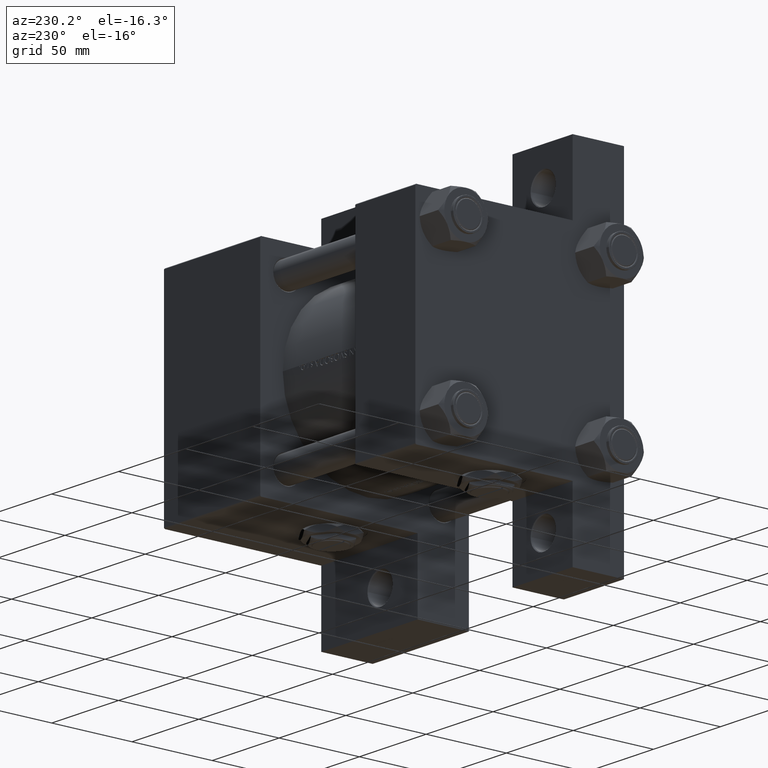
[diagram: clean part render]
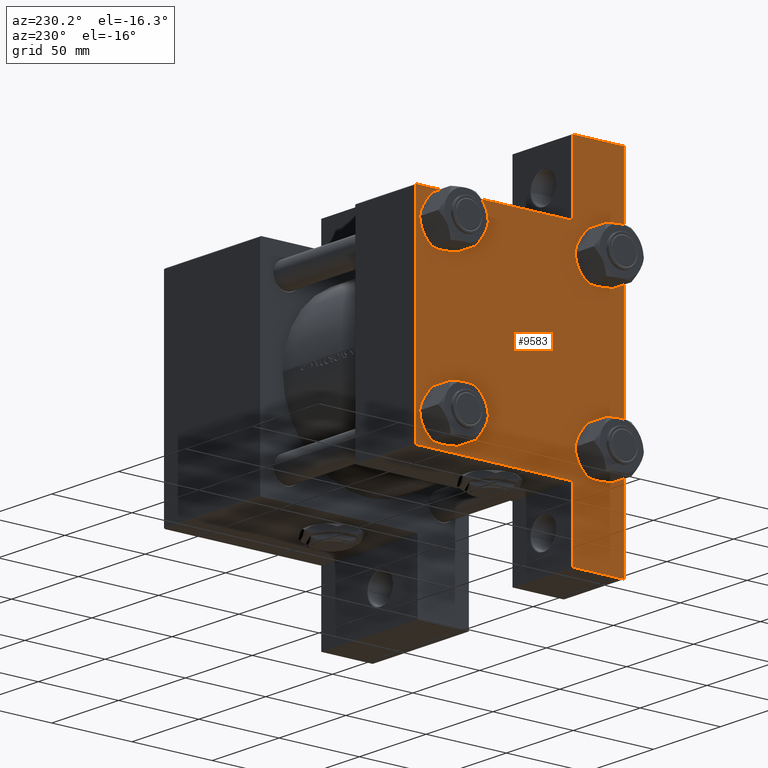
[diagram: same view with one face highlighted and labeled with its STEP entity id]
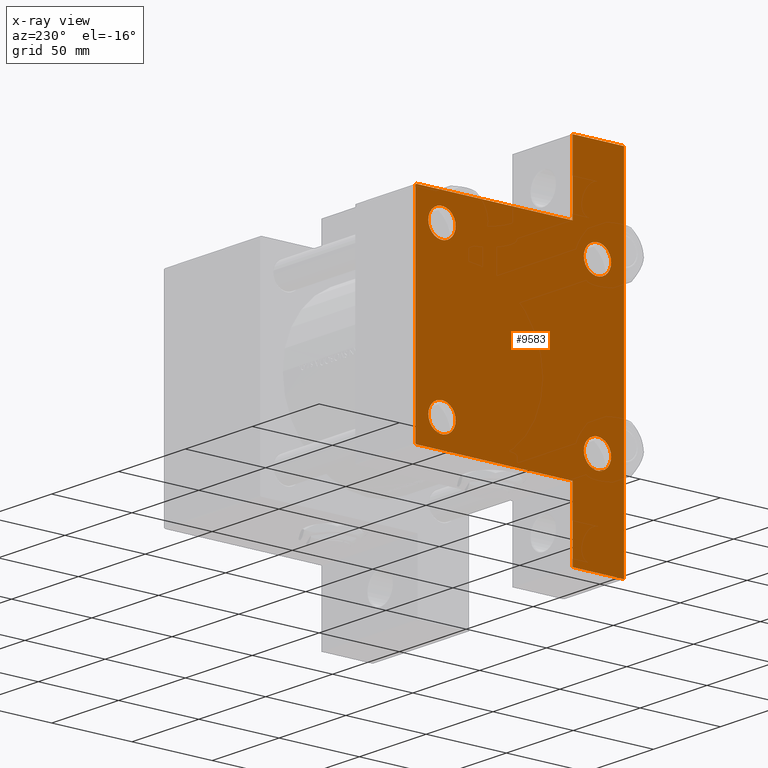
[diagram: x-ray of the same camera — body ghosted, the highlighted face saturated]
A machine part, auxiliary view. The second image highlights one B-rep face of the part: STEP entity #9583.
The next image is the same camera in x-ray: the body ghosted, the highlighted face saturated — about 0% of this face is hidden behind the body in this view.
In plain terms, the highlighted planar face has unit normal (-1, 0, -0).
Its self-contained STEP definition (entity closure, byte-faithful):
#60 = VECTOR ( 'NONE', #31898, 1000.000000000000000 ) ;
#353 = VERTEX_POINT ( 'NONE', #44807 ) ;
#848 = CARTESIAN_POINT ( 'NONE',  ( 0.000000000000000000, -64.49999999999997158, 65.00000000000000000 ) ) ;
#1542 = CARTESIAN_POINT ( 'NONE',  ( -4.696407624884284320E-16, -107.9999999999999858, -33.00000000000000000 ) ) ;
#1690 = AXIS2_PLACEMENT_3D ( 'NONE', #17116, #47537, #5212 ) ;
#1747 = CIRCLE ( 'NONE', #34919, 8.500000000000007105 ) ;
#1955 = CARTESIAN_POINT ( 'NONE',  ( 0.000000000000000000, -65.00000000000000000, 65.00000000000000000 ) ) ;
#2214 = LINE ( 'NONE', #1955, #22351 ) ;
#3772 = CARTESIAN_POINT ( 'NONE',  ( 0.000000000000000000, 48.45000000000000995, 48.45000000000001705 ) ) ;
#3939 = VERTEX_POINT ( 'NONE', #22533 ) ;
#4085 = CARTESIAN_POINT ( 'NONE',  ( 0.000000000000000000, 64.49999999999997158, 65.00000000000001421 ) ) ;
#4445 = VERTEX_POINT ( 'NONE', #6400 ) ;
#4905 = DIRECTION ( 'NONE',  ( 0.000000000000000000, 0.000000000000000000, -1.000000000000000000 ) ) ;
#5212 = DIRECTION ( 'NONE',  ( 0.000000000000000000, 0.000000000000000000, 1.000000000000000000 ) ) ;
#5520 = LINE ( 'NONE', #17172, #60 ) ;
#5689 = VERTEX_POINT ( 'NONE', #19383 ) ;
#6045 = DIRECTION ( 'NONE',  ( 0.000000000000000000, 0.000000000000000000, 1.000000000000000000 ) ) ;
#6400 = CARTESIAN_POINT ( 'NONE',  ( 1.020153353658907479E-15, -65.00000000000000000, -33.00000000000000000 ) ) ;
#6566 = ORIENTED_EDGE ( 'NONE', *, *, #25389, .T. ) ;
#6633 = LINE ( 'NONE', #18290, #46156 ) ;
#6948 = EDGE_CURVE ( 'NONE', #47872, #15053, #30883, .T. ) ;
#7393 = AXIS2_PLACEMENT_3D ( 'NONE', #33173, #44314, #48850 ) ;
#7465 = EDGE_LOOP ( 'NONE', ( #10620, #8917 ) ) ;
#7515 = EDGE_CURVE ( 'NONE', #353, #26882, #1747, .T. ) ;
#8040 = DIRECTION ( 'NONE',  ( 1.000000000000000000, -0.000000000000000000, 0.000000000000000000 ) ) ;
#8573 = CARTESIAN_POINT ( 'NONE',  ( 0.000000000000000000, 65.00000000000000000, 65.00000000000001421 ) ) ;
#8917 = ORIENTED_EDGE ( 'NONE', *, *, #13856, .T. ) ;
#9028 = LINE ( 'NONE', #21442, #46669 ) ;
#9166 = ORIENTED_EDGE ( 'NONE', *, *, #43961, .T. ) ;
#9171 = VERTEX_POINT ( 'NONE', #39033 ) ;
#9583 = ADVANCED_FACE ( 'NONE', ( #24261, #47579, #16158, #39217, #46585 ), #39723, .T. ) ;
#9769 = ORIENTED_EDGE ( 'NONE', *, *, #29494, .F. ) ;
#10108 = DIRECTION ( 'NONE',  ( -2.102829850353463349E-16, -1.000000000000000000, 0.000000000000000000 ) ) ;
#10195 = CARTESIAN_POINT ( 'NONE',  ( -4.696407624884288264E-16, -108.0000000000000000, -33.00000000000000000 ) ) ;
#10392 = VERTEX_POINT ( 'NONE', #4085 ) ;
#10620 = ORIENTED_EDGE ( 'NONE', *, *, #31234, .T. ) ;
#10734 = CIRCLE ( 'NONE', #13974, 8.500000000000007105 ) ;
#11643 = CARTESIAN_POINT ( 'NONE',  ( 0.000000000000000000, 65.00000000000000000, 64.49999999999998579 ) ) ;
#12168 = CIRCLE ( 'NONE', #1690, 8.500000000000007105 ) ;
#12461 = DIRECTION ( 'NONE',  ( 0.000000000000000000, 0.000000000000000000, 1.000000000000000000 ) ) ;
#12908 = ORIENTED_EDGE ( 'NONE', *, *, #13052, .T. ) ;
#12959 = ORIENTED_EDGE ( 'NONE', *, *, #48426, .T. ) ;
#13052 = EDGE_CURVE ( 'NONE', #36580, #26754, #47226, .T. ) ;
#13856 = EDGE_CURVE ( 'NONE', #49588, #38129, #10734, .T. ) ;
#13974 = AXIS2_PLACEMENT_3D ( 'NONE', #25559, #33168, #6045 ) ;
#14260 = ORIENTED_EDGE ( 'NONE', *, *, #27478, .F. ) ;
#14373 = EDGE_LOOP ( 'NONE', ( #49529, #6566 ) ) ;
#14675 = VERTEX_POINT ( 'NONE', #15652 ) ;
#14907 = CARTESIAN_POINT ( 'NONE',  ( 0.000000000000000000, 48.45000000000000995, -48.45000000000001705 ) ) ;
#14926 = CARTESIAN_POINT ( 'NONE',  ( 0.000000000000000000, -48.44999999999999574, -39.95000000000001705 ) ) ;
#15009 = VERTEX_POINT ( 'NONE', #30811 ) ;
#15018 = CIRCLE ( 'NONE', #43324, 8.500000000000007105 ) ;
#15053 = VERTEX_POINT ( 'NONE', #38144 ) ;
#15652 = CARTESIAN_POINT ( 'NONE',  ( 2.598273009909439483E-14, 108.0000000000000284, -65.00000000000001421 ) ) ;
#15755 = CIRCLE ( 'NONE', #43272, 8.500000000000007105 ) ;
#15981 = CARTESIAN_POINT ( 'NONE',  ( 0.000000000000000000, -48.44999999999999574, 48.45000000000003126 ) ) ;
#16158 = FACE_BOUND ( 'NONE', #14373, .T. ) ;
#16413 = EDGE_LOOP ( 'NONE', ( #23178, #37131, #32454, #36393, #12908, #9769, #45038, #36375, #14260, #45845 ) ) ;
#17116 = CARTESIAN_POINT ( 'NONE',  ( 0.000000000000000000, -48.44999999999999574, -48.45000000000003126 ) ) ;
#17172 = CARTESIAN_POINT ( 'NONE',  ( -0.000000000000000000, -64.74999999999819522, 64.75000000000179057 ) ) ;
#17441 = CIRCLE ( 'NONE', #45762, 8.500000000000007105 ) ;
#17659 = DIRECTION ( 'NONE',  ( 0.000000000000000000, 0.000000000000000000, -1.000000000000000000 ) ) ;
#17964 = LINE ( 'NONE', #29393, #21524 ) ;
#18290 = CARTESIAN_POINT ( 'NONE',  ( 2.598273009909439483E-14, 108.0000000000000426, 29.24146527838174237 ) ) ;
#19383 = CARTESIAN_POINT ( 'NONE',  ( 0.000000000000000000, -65.00000000000000000, 64.50000000000000000 ) ) ;
#19512 = VERTEX_POINT ( 'NONE', #10195 ) ;
#20285 = DIRECTION ( 'NONE',  ( -3.464637479412410313E-17, -1.000000000000000000, 0.000000000000000000 ) ) ;
#21259 = CARTESIAN_POINT ( 'NONE',  ( 0.000000000000000000, -48.44999999999999574, -56.95000000000003837 ) ) ;
#21369 = CARTESIAN_POINT ( 'NONE',  ( 0.000000000000000000, 48.45000000000000995, 39.95000000000000284 ) ) ;
#21442 = CARTESIAN_POINT ( 'NONE',  ( -4.696407624884288264E-16, -107.9999999999999858, 29.24146527838177079 ) ) ;
#21524 = VECTOR ( 'NONE', #22513, 1000.000000000000114 ) ;
#22089 = DIRECTION ( 'NONE',  ( 0.000000000000000000, -1.734723475976806848E-16, -1.000000000000000000 ) ) ;
#22351 = VECTOR ( 'NONE', #17659, 1000.000000000000000 ) ;
#22513 = DIRECTION ( 'NONE',  ( 0.000000000000000000, 0.7071067811865474617, -0.7071067811865474617 ) ) ;
#22533 = CARTESIAN_POINT ( 'NONE',  ( 2.598273009909439483E-14, 108.0000000000000284, -33.00000000000000000 ) ) ;
#23178 = ORIENTED_EDGE ( 'NONE', *, *, #25598, .F. ) ;
#24261 = FACE_BOUND ( 'NONE', #29084, .T. ) ;
#24521 = DIRECTION ( 'NONE',  ( -1.000000000000000000, 0.000000000000000000, -0.000000000000000000 ) ) ;
#24976 = EDGE_CURVE ( 'NONE', #9171, #15009, #15018, .T. ) ;
#25108 = VECTOR ( 'NONE', #10108, 1000.000000000000000 ) ;
#25389 = EDGE_CURVE ( 'NONE', #15053, #47872, #17441, .T. ) ;
#25559 = CARTESIAN_POINT ( 'NONE',  ( 0.000000000000000000, -48.44999999999999574, -48.45000000000003126 ) ) ;
#25598 = EDGE_CURVE ( 'NONE', #5689, #4445, #2214, .T. ) ;
#25853 = DIRECTION ( 'NONE',  ( 0.000000000000000000, 0.000000000000000000, 1.000000000000000000 ) ) ;
#26287 = EDGE_CURVE ( 'NONE', #10392, #36580, #17964, .T. ) ;
#26754 = VERTEX_POINT ( 'NONE', #35330 ) ;
#26882 = VERTEX_POINT ( 'NONE', #21369 ) ;
#27478 = EDGE_CURVE ( 'NONE', #19512, #27882, #9028, .T. ) ;
#27822 = DIRECTION ( 'NONE',  ( -0.000000000000000000, 0.000000000000000000, 1.000000000000000000 ) ) ;
#27882 = VERTEX_POINT ( 'NONE', #44438 ) ;
#28096 = AXIS2_PLACEMENT_3D ( 'NONE', #29916, #30417, #25853 ) ;
#28187 = DIRECTION ( 'NONE',  ( 1.000000000000000000, -0.000000000000000000, 0.000000000000000000 ) ) ;
#29063 = DIRECTION ( 'NONE',  ( 0.000000000000000000, -1.734723475976806848E-16, -1.000000000000000000 ) ) ;
#29084 = EDGE_LOOP ( 'NONE', ( #45272, #9166 ) ) ;
#29393 = CARTESIAN_POINT ( 'NONE',  ( 0.000000000000000000, 64.74999999999998579, 64.74999999999998579 ) ) ;
#29494 = EDGE_CURVE ( 'NONE', #3939, #26754, #33188, .T. ) ;
#29607 = LINE ( 'NONE', #37931, #32599 ) ;
#29774 = DIRECTION ( 'NONE',  ( 1.000000000000000000, -0.000000000000000000, 0.000000000000000000 ) ) ;
#29782 = EDGE_CURVE ( 'NONE', #3939, #14675, #6633, .T. ) ;
#29916 = CARTESIAN_POINT ( 'NONE',  ( 0.000000000000000000, 48.45000000000000995, 48.45000000000001705 ) ) ;
#30097 = DIRECTION ( 'NONE',  ( 0.000000000000000000, -1.000000000000000000, -1.067522139062650425E-16 ) ) ;
#30369 = EDGE_CURVE ( 'NONE', #5689, #31499, #5520, .T. ) ;
#30417 = DIRECTION ( 'NONE',  ( 1.000000000000000000, -0.000000000000000000, 0.000000000000000000 ) ) ;
#30811 = CARTESIAN_POINT ( 'NONE',  ( 0.000000000000000000, -48.44999999999999574, 39.95000000000001705 ) ) ;
#30883 = CIRCLE ( 'NONE', #7393, 8.500000000000007105 ) ;
#31045 = EDGE_CURVE ( 'NONE', #10392, #31499, #43537, .T. ) ;
#31234 = EDGE_CURVE ( 'NONE', #38129, #49588, #12168, .T. ) ;
#31499 = VERTEX_POINT ( 'NONE', #848 ) ;
#31792 = VECTOR ( 'NONE', #20285, 1000.000000000000000 ) ;
#31898 = DIRECTION ( 'NONE',  ( -0.000000000000000000, 0.7071067811865672237, 0.7071067811865279218 ) ) ;
#32395 = DIRECTION ( 'NONE',  ( 0.000000000000000000, -1.000000000000000000, -1.067522139062650425E-16 ) ) ;
#32427 = AXIS2_PLACEMENT_3D ( 'NONE', #38973, #24521, #27822 ) ;
#32454 = ORIENTED_EDGE ( 'NONE', *, *, #31045, .F. ) ;
#32599 = VECTOR ( 'NONE', #30097, 1000.000000000000000 ) ;
#33168 = DIRECTION ( 'NONE',  ( 1.000000000000000000, -0.000000000000000000, 0.000000000000000000 ) ) ;
#33173 = CARTESIAN_POINT ( 'NONE',  ( 0.000000000000000000, 48.45000000000000995, -48.45000000000001705 ) ) ;
#33188 = LINE ( 'NONE', #37717, #25108 ) ;
#34671 = DIRECTION ( 'NONE',  ( 1.000000000000000000, -0.000000000000000000, 0.000000000000000000 ) ) ;
#34919 = AXIS2_PLACEMENT_3D ( 'NONE', #3772, #34671, #50104 ) ;
#35256 = EDGE_LOOP ( 'NONE', ( #47725, #12959 ) ) ;
#35330 = CARTESIAN_POINT ( 'NONE',  ( 0.000000000000000000, 65.00000000000000000, -33.00000000000000000 ) ) ;
#35503 = LINE ( 'NONE', #1542, #31792 ) ;
#35829 = EDGE_CURVE ( 'NONE', #14675, #27882, #29607, .T. ) ;
#36375 = ORIENTED_EDGE ( 'NONE', *, *, #35829, .T. ) ;
#36393 = ORIENTED_EDGE ( 'NONE', *, *, #26287, .T. ) ;
#36494 = VECTOR ( 'NONE', #32395, 1000.000000000000000 ) ;
#36580 = VERTEX_POINT ( 'NONE', #11643 ) ;
#37131 = ORIENTED_EDGE ( 'NONE', *, *, #30369, .T. ) ;
#37717 = CARTESIAN_POINT ( 'NONE',  ( 2.598273009909439798E-14, 108.0000000000000426, -33.00000000000000000 ) ) ;
#37931 = CARTESIAN_POINT ( 'NONE',  ( 0.000000000000000000, 65.00000000000000000, -64.99999999999998579 ) ) ;
#38129 = VERTEX_POINT ( 'NONE', #14926 ) ;
#38144 = CARTESIAN_POINT ( 'NONE',  ( 0.000000000000000000, 48.45000000000000995, -56.95000000000002416 ) ) ;
#38973 = CARTESIAN_POINT ( 'NONE',  ( 0.000000000000000000, 0.000000000000000000, 0.000000000000000000 ) ) ;
#39033 = CARTESIAN_POINT ( 'NONE',  ( 0.000000000000000000, -48.44999999999999574, 56.95000000000003837 ) ) ;
#39217 = FACE_BOUND ( 'NONE', #35256, .T. ) ;
#39378 = CARTESIAN_POINT ( 'NONE',  ( 0.000000000000000000, 65.00000000000000000, 65.00000000000001421 ) ) ;
#39723 = PLANE ( 'NONE',  #32427 ) ;
#40083 = EDGE_CURVE ( 'NONE', #4445, #19512, #35503, .T. ) ;
#42522 = DIRECTION ( 'NONE',  ( 0.000000000000000000, 0.000000000000000000, 1.000000000000000000 ) ) ;
#42970 = CARTESIAN_POINT ( 'NONE',  ( 0.000000000000000000, 48.45000000000000995, -39.95000000000000284 ) ) ;
#43272 = AXIS2_PLACEMENT_3D ( 'NONE', #15981, #29774, #45209 ) ;
#43324 = AXIS2_PLACEMENT_3D ( 'NONE', #47434, #28187, #12461 ) ;
#43537 = LINE ( 'NONE', #8573, #36494 ) ;
#43961 = EDGE_CURVE ( 'NONE', #15009, #9171, #15755, .T. ) ;
#44314 = DIRECTION ( 'NONE',  ( 1.000000000000000000, -0.000000000000000000, 0.000000000000000000 ) ) ;
#44438 = CARTESIAN_POINT ( 'NONE',  ( -4.696407624884288264E-16, -108.0000000000000000, -64.99999999999998579 ) ) ;
#44807 = CARTESIAN_POINT ( 'NONE',  ( 0.000000000000000000, 48.45000000000000995, 56.95000000000002416 ) ) ;
#45038 = ORIENTED_EDGE ( 'NONE', *, *, #29782, .T. ) ;
#45209 = DIRECTION ( 'NONE',  ( 0.000000000000000000, 0.000000000000000000, 1.000000000000000000 ) ) ;
#45272 = ORIENTED_EDGE ( 'NONE', *, *, #24976, .T. ) ;
#45477 = VECTOR ( 'NONE', #4905, 1000.000000000000000 ) ;
#45762 = AXIS2_PLACEMENT_3D ( 'NONE', #14907, #8040, #42522 ) ;
#45845 = ORIENTED_EDGE ( 'NONE', *, *, #40083, .F. ) ;
#46156 = VECTOR ( 'NONE', #22089, 1000.000000000000000 ) ;
#46585 = FACE_OUTER_BOUND ( 'NONE', #16413, .T. ) ;
#46669 = VECTOR ( 'NONE', #29063, 1000.000000000000000 ) ;
#47226 = LINE ( 'NONE', #39378, #45477 ) ;
#47434 = CARTESIAN_POINT ( 'NONE',  ( 0.000000000000000000, -48.44999999999999574, 48.45000000000003126 ) ) ;
#47475 = CIRCLE ( 'NONE', #28096, 8.500000000000007105 ) ;
#47537 = DIRECTION ( 'NONE',  ( 1.000000000000000000, -0.000000000000000000, 0.000000000000000000 ) ) ;
#47579 = FACE_BOUND ( 'NONE', #7465, .T. ) ;
#47725 = ORIENTED_EDGE ( 'NONE', *, *, #7515, .T. ) ;
#47872 = VERTEX_POINT ( 'NONE', #42970 ) ;
#48426 = EDGE_CURVE ( 'NONE', #26882, #353, #47475, .T. ) ;
#48850 = DIRECTION ( 'NONE',  ( 0.000000000000000000, 0.000000000000000000, 1.000000000000000000 ) ) ;
#49529 = ORIENTED_EDGE ( 'NONE', *, *, #6948, .T. ) ;
#49588 = VERTEX_POINT ( 'NONE', #21259 ) ;
#50104 = DIRECTION ( 'NONE',  ( 0.000000000000000000, 0.000000000000000000, 1.000000000000000000 ) ) ;